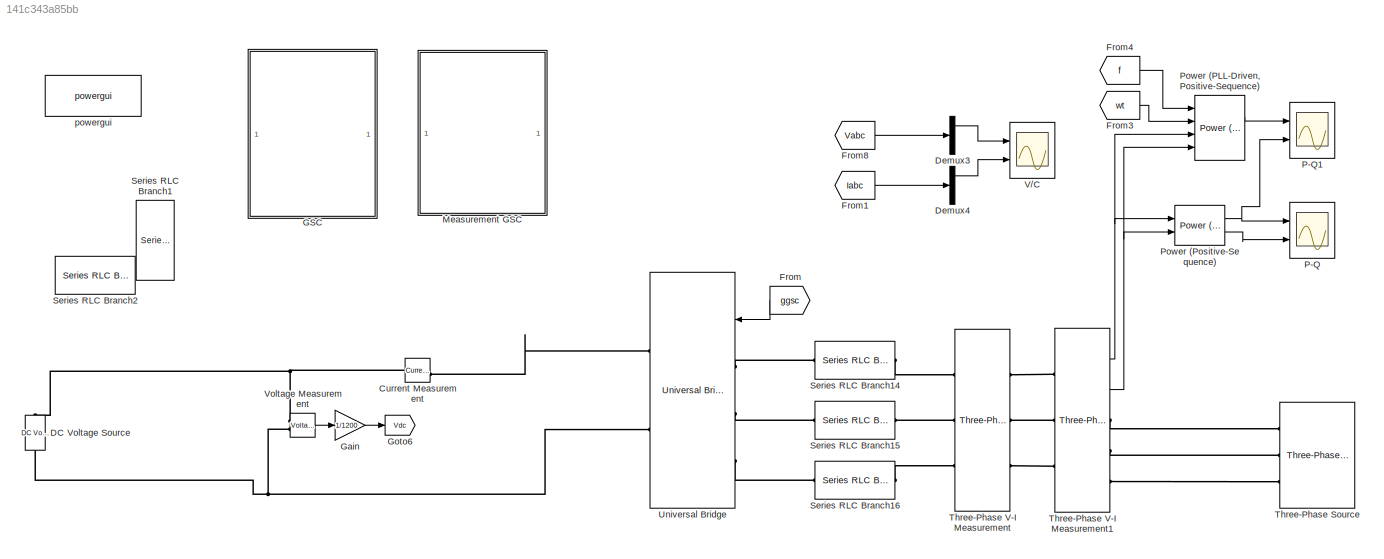
MODEL slx_141c343a85bb
KIND model
CONFIG AbsTol = auto
CONFIG FixedStep = auto
CONFIG MaxStep = auto
CONFIG MinStep = auto
CONFIG RelTol = 1e-3
CONFIG SampleTimeConstraint = Unconstrained
CONFIG Solver = VariableStepAuto
CONFIG SolverMode = Auto
CONFIG SolverName = VariableStepAuto
CONFIG StartTime = 0.0
CONFIG StopTime = 10.0
BLOCK [Reference] Current Measurement  REF=powerlib/Measurements/Current Measurement
  Ports = [0, 1, 0, 0, 0, 1, 1]
  SourceBlock = powerlib/Measurements/Current Measurement
  SourceType = Current Measurement
  UserDataPersistent = on
BLOCK [Reference] DC Voltage Source  REF=powerlib/Electrical
Sources/DC Voltage Source
  Ports = [0, 0, 0, 0, 0, 1, 1]
  SourceBlock = powerlib/Electrical\nSources/DC Voltage Source
  SourceType = DC Voltage Source
BLOCK [Demux] Demux3
  DisplayOption = bar
  Outputs = 3
  Ports = [1, 3]
BLOCK [Demux] Demux4
  DisplayOption = bar
  Outputs = 3
  Ports = [1, 3]
BLOCK [From] From
  GotoTag = ggsc
  TagVisibility = global
BLOCK [From] From1
  GotoTag = Iabc
  TagVisibility = global
BLOCK [From] From3
  GotoTag = wt
  TagVisibility = global
BLOCK [From] From4
  GotoTag = f
  TagVisibility = global
BLOCK [From] From8
  GotoTag = Vabc
  TagVisibility = global
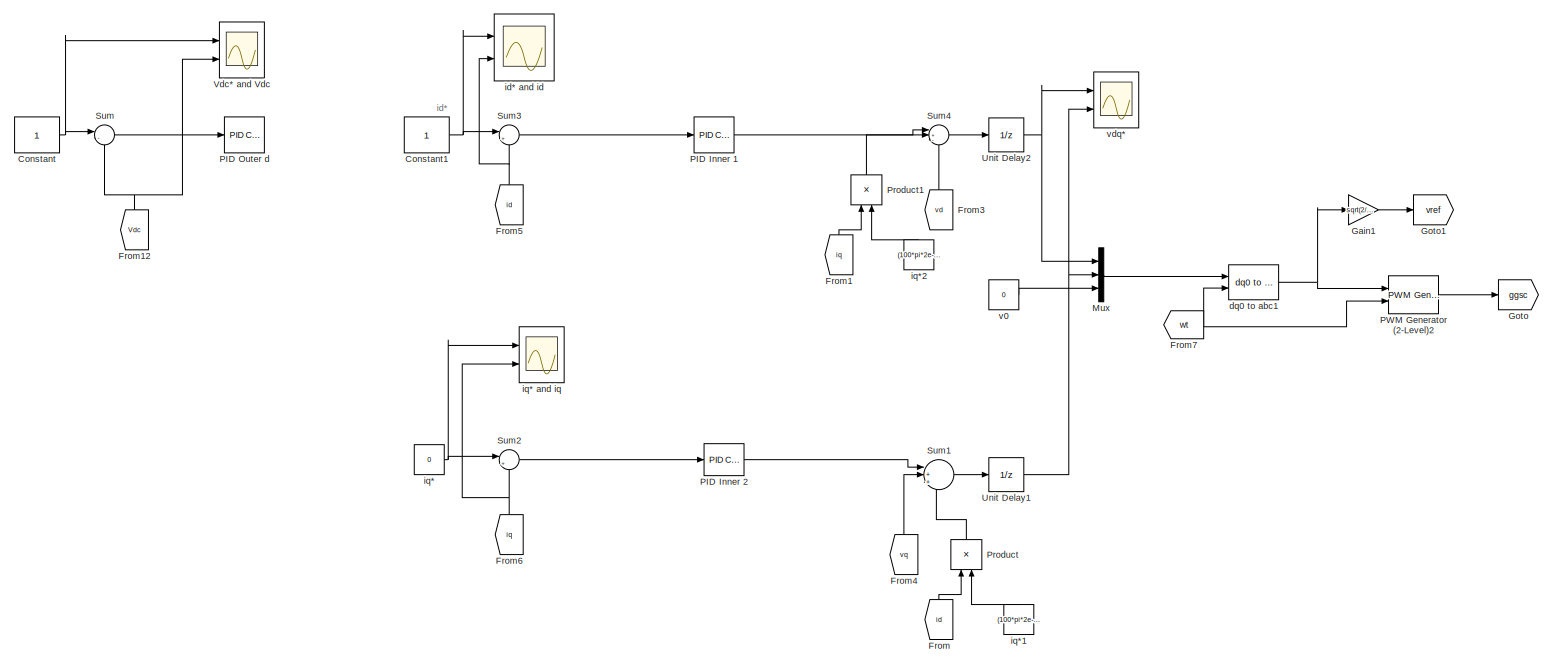
[diagram: GSC - part 1/1, most of the canvas]
BLOCK [SubSystem] GSC
  Ports = []
  RequestExecContextInheritance = off
  Variant = off
BLOCK [Constant] GSC/Constant
  Commented = on
BLOCK [Constant] GSC/Constant1
BLOCK [From] GSC/From
  GotoTag = id
  TagVisibility = global
BLOCK [From] GSC/From1
  GotoTag = iq
  TagVisibility = global
BLOCK [From] GSC/From12
  Commented = on
  GotoTag = Vdc
  TagVisibility = global
BLOCK [From] GSC/From3
  GotoTag = vd
  TagVisibility = global
BLOCK [From] GSC/From4
  GotoTag = vq
  TagVisibility = global
BLOCK [From] GSC/From5
  GotoTag = id
  TagVisibility = global
BLOCK [From] GSC/From6
  GotoTag = iq
  TagVisibility = global
BLOCK [From] GSC/From7
  GotoTag = wt
  TagVisibility = global
BLOCK [Gain] GSC/Gain1
  Gain = sqrt(2/3)*690
  OutDataTypeStr = Inherit: Inherit via internal rule
  ParamDataTypeStr = Inherit: Inherit via internal rule
  SaturateOnIntegerOverflow = off
BLOCK [Goto] GSC/Goto
  GotoTag = ggsc
  TagVisibility = global
BLOCK [Goto] GSC/Goto1
  GotoTag = vref
  TagVisibility = global
BLOCK [Mux] GSC/Mux
  DisplayOption = bar
  Inputs = 3
  Ports = [3, 1]
BLOCK [Reference] GSC/PID Inner 1  REF=simulink/Continuous/PID Controller
  Ports = [1, 1]
  SourceBlock = simulink/Continuous/PID Controller
  SourceType = PID 1dof
BLOCK [Reference] GSC/PID Inner 2  REF=simulink/Continuous/PID Controller
  Ports = [1, 1]
  SourceBlock = simulink/Continuous/PID Controller
  SourceType = PID 1dof
BLOCK [Reference] GSC/PID Outer d  REF=simulink/Continuous/PID Controller
  Commented = on
  Ports = [1, 1]
  SourceBlock = simulink/Continuous/PID Controller
  SourceType = PID 1dof
BLOCK [Reference] GSC/PWM Generator (2-Level)2  REF=powerlib_meascontrol/Pulse & Signal
Generators/PWM Generator
(2-Level)
  Ports = [2, 1]
  SourceBlock = powerlib_meascontrol/Pulse & Signal\nGenerators/PWM Generator\n(2-Level)
  SourceType = PWM Generator (2-Level)
BLOCK [Product] GSC/Product
  InputSameDT = off
  OutDataTypeStr = Inherit: Inherit via internal rule
  Ports = [2, 1]
  RndMeth = Floor
  SaturateOnIntegerOverflow = off
BLOCK [Product] GSC/Product1
  InputSameDT = off
  OutDataTypeStr = Inherit: Inherit via internal rule
  Ports = [2, 1]
  RndMeth = Floor
  SaturateOnIntegerOverflow = off
BLOCK [Sum] GSC/Sum
  Commented = on
  IconShape = round
  InputSameDT = off
  Inputs = |-+
  OutDataTypeStr = Inherit: Inherit via internal rule
  Ports = [2, 1]
  SaturateOnIntegerOverflow = off
BLOCK [Sum] GSC/Sum1
  IconShape = round
  InputSameDT = off
  Inputs = |+++
  OutDataTypeStr = Inherit: Inherit via internal rule
  Ports = [3, 1]
  SaturateOnIntegerOverflow = off
BLOCK [Sum] GSC/Sum2
  IconShape = round
  InputSameDT = off
  Inputs = |+-
  OutDataTypeStr = Inherit: Inherit via internal rule
  Ports = [2, 1]
  SaturateOnIntegerOverflow = off
BLOCK [Sum] GSC/Sum3
  IconShape = round
  InputSameDT = off
  Inputs = |+-
  OutDataTypeStr = Inherit: Inherit via internal rule
  Ports = [2, 1]
  SaturateOnIntegerOverflow = off
BLOCK [Sum] GSC/Sum4
  IconShape = round
  InputSameDT = off
  Inputs = |+-+
  OutDataTypeStr = Inherit: Inherit via internal rule
  Ports = [3, 1]
  SaturateOnIntegerOverflow = off
BLOCK [UnitDelay] GSC/Unit Delay1
  InputProcessing = Elements as channels (sample based)
  SampleTime = Ts
BLOCK [UnitDelay] GSC/Unit Delay2
  InputProcessing = Elements as channels (sample based)
  SampleTime = Ts
BLOCK [Scope] GSC/Vdc* and Vdc
  Commented = on
  NumInputPorts = 2
  Ports = [2]
  ScopeSpecificationString = Simulink.scopes.TimeScopeBlockCfg('CurrentConfiguration', extmgr.ConfigurationSet(extmgr.Configuration('Core','General UI',true),extmgr.Configuration('Core','Source UI',true),extmgr.Configuration('Sources','WiredSimulink',true,'DataLoggingSaveFormat','Array','DataLoggingDecimation','1','DataLoggingVariableName','ScopeData3'),extmgr.Configuration('Visuals','Time Domain',true,'SerializedDisplays',{s...<+1471ch>
BLOCK [Reference] GSC/dq0 to abc1  REF=powerlib_meascontrol/Transformations/dq0 to abc
  Ports = [2, 1]
  SourceBlock = powerlib_meascontrol/Transformations/dq0 to abc
  SourceType = dq0 to abc Transformation
BLOCK [Scope] GSC/id* and id 
  NumInputPorts = 2
  Ports = [2]
  ScopeSpecificationString = Simulink.scopes.TimeScopeBlockCfg('CurrentConfiguration', extmgr.ConfigurationSet(extmgr.Configuration('Core','General UI',true),extmgr.Configuration('Core','Source UI',true),extmgr.Configuration('Sources','WiredSimulink',true,'DataLoggingSaveFormat','Array','DataLoggingDecimation','1','DataLoggingVariableName','ScopeData3'),extmgr.Configuration('Visuals','Time Domain',true,'SerializedDisplays',{s...<+1840ch>
BLOCK [Constant] GSC/iq*
  Value = 0
BLOCK [Scope] GSC/iq* and iq 
  NumInputPorts = 2
  Ports = [2]
  ScopeSpecificationString = Simulink.scopes.TimeScopeBlockCfg('CurrentConfiguration', extmgr.ConfigurationSet(extmgr.Configuration('Core','General UI',true),extmgr.Configuration('Core','Source UI',true),extmgr.Configuration('Sources','WiredSimulink',true,'DataLoggingSaveFormat','Array','DataLoggingDecimation','1','DataLoggingVariableName','ScopeData4'),extmgr.Configuration('Visuals','Time Domain',true,'SerializedDisplays',{s...<+1505ch>
BLOCK [Constant] GSC/iq*1
  Value = (100*pi*2e-4)*(2.75e6/(690*690))
BLOCK [Constant] GSC/iq*2
  Value = (100*pi*2e-4)*(2.75e6/(690*690))
BLOCK [Constant] GSC/v0
  Value = 0
BLOCK [Scope] GSC/vdq* 
  NumInputPorts = 2
  Ports = [2]
  ScopeSpecificationString = Simulink.scopes.TimeScopeBlockCfg('CurrentConfiguration', extmgr.ConfigurationSet(extmgr.Configuration('Core','General UI',true),extmgr.Configuration('Core','Source UI',true),extmgr.Configuration('Sources','WiredSimulink',true,'DataLoggingSaveFormat','Array','DataLoggingDecimation','1','DataLoggingVariableName','ScopeData5'),extmgr.Configuration('Visuals','Time Domain',true,'SerializedDisplays',{s...<+1516ch>
BLOCK [Gain] Gain
  Gain = 1/1200
  OutDataTypeStr = Inherit: Inherit via internal rule
  ParamDataTypeStr = Inherit: Inherit via internal rule
  SaturateOnIntegerOverflow = off
BLOCK [Goto] Goto6
  GotoTag = Vdc
  TagVisibility = global
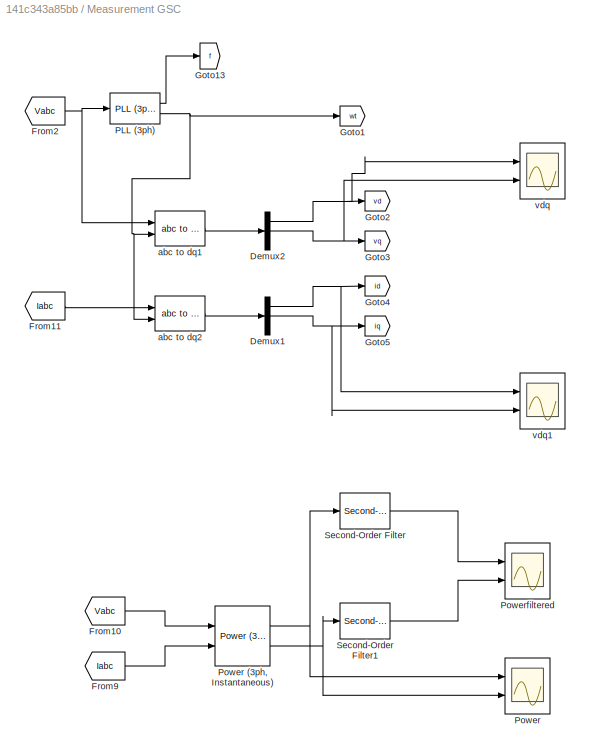
BLOCK [SubSystem] Measurement GSC
  Ports = []
  RequestExecContextInheritance = off
  Variant = off
BLOCK [Demux] Measurement GSC/Demux1
  DisplayOption = bar
  Outputs = 3
  Ports = [1, 3]
BLOCK [Demux] Measurement GSC/Demux2
  DisplayOption = bar
  Outputs = 3
  Ports = [1, 3]
BLOCK [From] Measurement GSC/From10
  GotoTag = Vabc
  TagVisibility = global
BLOCK [From] Measurement GSC/From11
  GotoTag = Iabc
  TagVisibility = global
BLOCK [From] Measurement GSC/From2
  GotoTag = Vabc
  TagVisibility = global
BLOCK [From] Measurement GSC/From9
  GotoTag = Iabc
  TagVisibility = global
BLOCK [Goto] Measurement GSC/Goto1
  GotoTag = wt
  TagVisibility = global
BLOCK [Goto] Measurement GSC/Goto13
  GotoTag = f
  TagVisibility = global
BLOCK [Goto] Measurement GSC/Goto2
  GotoTag = vd
  TagVisibility = global
BLOCK [Goto] Measurement GSC/Goto3
  GotoTag = vq
  TagVisibility = global
BLOCK [Goto] Measurement GSC/Goto4
  GotoTag = id
  TagVisibility = global
BLOCK [Goto] Measurement GSC/Goto5
  GotoTag = iq
  TagVisibility = global
BLOCK [Reference] Measurement GSC/PLL (3ph)  REF=powerlib_meascontrol/PLL/PLL
(3ph)
  Ports = [1, 2]
  SourceBlock = powerlib_meascontrol/PLL/PLL\n(3ph)
  SourceType = PLL (3ph)
BLOCK [Scope] Measurement GSC/Power
  NumInputPorts = 2
  Ports = [2]
  ScopeSpecificationString = Simulink.scopes.TimeScopeBlockCfg('CurrentConfiguration', extmgr.ConfigurationSet(extmgr.Configuration('Core','General UI',true),extmgr.Configuration('Core','Source UI',true),extmgr.Configuration('Sources','WiredSimulink',true,'DataLoggingVariableName','ScopeData1'),extmgr.Configuration('Visuals','Time Domain',true,'SerializedDisplays',{struct('MinYLimReal','1.27459','MaxYLimReal','1.63658','YLabe...<+1487ch>
BLOCK [Reference] Measurement GSC/Power (3ph, Instantaneous)  REF=powerlib_meascontrol/Measurements/Power
(3ph, Instantaneous)
  Ports = [2, 2]
  SourceBlock = powerlib_meascontrol/Measurements/Power\n(3ph, Instantaneous)
  SourceType = Power (3ph, Instantaneous)
BLOCK [Scope] Measurement GSC/Powerfiltered 
  NumInputPorts = 2
  Ports = [2]
  ScopeSpecificationString = Simulink.scopes.TimeScopeBlockCfg('CurrentConfiguration', extmgr.ConfigurationSet(extmgr.Configuration('Core','General UI',true),extmgr.Configuration('Core','Source UI',true),extmgr.Configuration('Sources','WiredSimulink',true,'DataLoggingVariableName','ScopeData2','DataLoggingLimitDataPoints',true,'DataLoggingSaveFormat','Array','DataLoggingDecimation','1','DataLoggingDecimateData',true),extmgr.C...<+1597ch>
BLOCK [Reference] Measurement GSC/Second-Order Filter  REF=powerlib_meascontrol/Filters/Second-Order
Filter
  Ports = [1, 1]
  SourceBlock = powerlib_meascontrol/Filters/Second-Order\nFilter
  SourceType = Second-Order Filter
BLOCK [Reference] Measurement GSC/Second-Order Filter1  REF=powerlib_meascontrol/Filters/Second-Order
Filter
  Ports = [1, 1]
  SourceBlock = powerlib_meascontrol/Filters/Second-Order\nFilter
  SourceType = Second-Order Filter
BLOCK [Reference] Measurement GSC/abc to dq1  REF=powerlib_meascontrol/Transformations/abc to dq0
  Ports = [2, 1]
  SourceBlock = powerlib_meascontrol/Transformations/abc to dq0
  SourceType = abc to dq0 Transformation
BLOCK [Reference] Measurement GSC/abc to dq2  REF=powerlib_meascontrol/Transformations/abc to dq0
  Ports = [2, 1]
  SourceBlock = powerlib_meascontrol/Transformations/abc to dq0
  SourceType = abc to dq0 Transformation
BLOCK [Scope] Measurement GSC/vdq
  NumInputPorts = 2
  Ports = [2]
  ScopeSpecificationString = Simulink.scopes.TimeScopeBlockCfg('CurrentConfiguration', extmgr.ConfigurationSet(extmgr.Configuration('Core','General UI',true),extmgr.Configuration('Core','Source UI',true),extmgr.Configuration('Sources','WiredSimulink',true,'DataLoggingSaveFormat','Array','DataLoggingDecimation','1','DataLoggingVariableName','ScopeData1'),extmgr.Configuration('Visuals','Time Domain',true,'SerializedDisplays',{s...<+1508ch>
BLOCK [Scope] Measurement GSC/vdq1
  NumInputPorts = 2
  Ports = [2]
  ScopeSpecificationString = Simulink.scopes.TimeScopeBlockCfg('CurrentConfiguration', extmgr.ConfigurationSet(extmgr.Configuration('Core','General UI',true),extmgr.Configuration('Core','Source UI',true),extmgr.Configuration('Sources','WiredSimulink',true,'DataLoggingSaveFormat','Array','DataLoggingDecimation','1','DataLoggingVariableName','ScopeData2'),extmgr.Configuration('Visuals','Time Domain',true,'SerializedDisplays',{s...<+1509ch>
BLOCK [Scope] P-Q
  NumInputPorts = 2
  Ports = [2]
  ScopeSpecificationString = Simulink.scopes.TimeScopeBlockCfg('CurrentConfiguration', extmgr.ConfigurationSet(extmgr.Configuration('Core','General UI',true),extmgr.Configuration('Core','Source UI',true),extmgr.Configuration('Sources','WiredSimulink',true,'DataLoggingSaveFormat','Array','DataLoggingDecimation','1','DataLoggingVariableName','ScopeData1'),extmgr.Configuration('Visuals','Time Domain',true,'SerializedDisplays',{s...<+1594ch>
BLOCK [Scope] P-Q1
  NumInputPorts = 2
  Ports = [2]
  ScopeSpecificationString = Simulink.scopes.TimeScopeBlockCfg('CurrentConfiguration', extmgr.ConfigurationSet(extmgr.Configuration('Core','General UI',true),extmgr.Configuration('Core','Source UI',true),extmgr.Configuration('Sources','WiredSimulink',true,'DataLoggingSaveFormat','Array','DataLoggingDecimation','1','DataLoggingVariableName','ScopeData1'),extmgr.Configuration('Visuals','Time Domain',true,'SerializedDisplays',{s...<+1602ch>
BLOCK [Reference] Power (PLL-Driven, Positive-Sequence)  REF=powerlib_meascontrol/Measurements/Power
(PLL-Driven,
Positive-Sequence)
  Ports = [4, 2]
  SourceBlock = powerlib_meascontrol/Measurements/Power\n(PLL-Driven,\nPositive-Sequence)
  SourceType = Power (PLL-Driven, Positive-Sequence)
BLOCK [Reference] Power (Positive-Sequence)  REF=powerlib_meascontrol/Measurements/Power
(Positive-Sequence)
  Ports = [2, 2]
  SourceBlock = powerlib_meascontrol/Measurements/Power\n(Positive-Sequence)
  SourceType = Power (Positive-Sequence)
BLOCK [Reference] Series RLC Branch1  REF=powerlib/Elements/Series RLC Branch
  Ports = [0, 0, 0, 0, 0, 1, 1]
  SourceBlock = powerlib/Elements/Series RLC Branch
  SourceType = Series RLC Branch
BLOCK [Reference] Series RLC Branch14  REF=powerlib/Elements/Series RLC Branch
  Ports = [0, 0, 0, 0, 0, 1, 1]
  SourceBlock = powerlib/Elements/Series RLC Branch
  SourceType = Series RLC Branch
BLOCK [Reference] Series RLC Branch15  REF=powerlib/Elements/Series RLC Branch
  Ports = [0, 0, 0, 0, 0, 1, 1]
  SourceBlock = powerlib/Elements/Series RLC Branch
  SourceType = Series RLC Branch
BLOCK [Reference] Series RLC Branch16  REF=powerlib/Elements/Series RLC Branch
  Ports = [0, 0, 0, 0, 0, 1, 1]
  SourceBlock = powerlib/Elements/Series RLC Branch
  SourceType = Series RLC Branch
BLOCK [Reference] Series RLC Branch2  REF=powerlib/Elements/Series RLC Branch
  Ports = [0, 0, 0, 0, 0, 1, 1]
  SourceBlock = powerlib/Elements/Series RLC Branch
  SourceType = Series RLC Branch
BLOCK [Reference] Three-Phase Source  REF=powerlib/Electrical
Sources/Three-Phase Source
  Ports = [0, 0, 0, 0, 0, 0, 3]
  SourceBlock = powerlib/Electrical\nSources/Three-Phase Source
  SourceType = Three-Phase Source
BLOCK [Reference] Three-Phase V-I Measurement  REF=powerlib/Measurements/Three-Phase
V-I Measurement
  Ports = [0, 0, 0, 0, 0, 3, 3]
  SourceBlock = powerlib/Measurements/Three-Phase\nV-I Measurement
  SourceType = Three-Phase VI Measurement
BLOCK [Reference] Three-Phase V-I Measurement1  REF=powerlib/Measurements/Three-Phase
V-I Measurement
  Ports = [0, 2, 0, 0, 0, 3, 3]
  SourceBlock = powerlib/Measurements/Three-Phase\nV-I Measurement
  SourceType = Three-Phase VI Measurement
BLOCK [Reference] Universal Bridge  REF=powerlib/Power
Electronics/Universal Bridge
  Ports = [1, 0, 0, 0, 0, 3, 2]
  SourceBlock = powerlib/Power\nElectronics/Universal Bridge
  SourceType = Universal Bridge
BLOCK [Scope] V//C 
  NumInputPorts = 2
  Ports = [2]
  ScopeSpecificationString = Simulink.scopes.TimeScopeBlockCfg('CurrentConfiguration', extmgr.ConfigurationSet(extmgr.Configuration('Core','General UI',true),extmgr.Configuration('Core','Source UI',true),extmgr.Configuration('Sources','WiredSimulink',true,'DataLoggingSaveFormat','Array','DataLoggingDecimation','1'),extmgr.Configuration('Visuals','Time Domain',true,'SerializedDisplays',{struct('MinYLimReal','-1.77746','MaxYLim...<+1473ch>
BLOCK [Reference] Voltage Measurement  REF=powerlib/Measurements/Voltage Measurement
  Ports = [0, 1, 0, 0, 0, 2]
  SourceBlock = powerlib/Measurements/Voltage Measurement
  SourceType = Voltage Measurement
  UserDataPersistent = on
BLOCK [Reference] powergui  REF=powerlib/powergui
  Ports = []
  Priority = 2
  SourceBlock = powerlib/powergui
  SourceType = PSB option menu block
ANNOTATION GSC: id*
LINE Demux3:1 -> V//C :1
LINE Demux4:1 -> V//C :2
LINE From1:1 -> Demux4:1
LINE From3:1 -> Power (PLL-Driven, Positive-Sequence):2
LINE From4:1 -> Power (PLL-Driven, Positive-Sequence):1
LINE From8:1 -> Demux3:1
LINE From:1 -> Universal Bridge:1
NET GSC/Constant1:1 -> GSC/Sum3:1, GSC/id* and id :1
NET GSC/Constant:1 -> GSC/Sum:1, GSC/Vdc* and Vdc:1
NET GSC/From12:1 -> GSC/Sum:2, GSC/Vdc* and Vdc:2
LINE GSC/From1:1 -> GSC/Product1:1
LINE GSC/From3:1 -> GSC/Sum4:3
LINE GSC/From4:1 -> GSC/Sum1:2
NET GSC/From5:1 -> GSC/Sum3:2, GSC/id* and id :2
NET GSC/From6:1 -> GSC/Sum2:2, GSC/iq* and iq :2
NET GSC/From7:1 -> GSC/PWM Generator (2-Level)2:2, GSC/dq0 to abc1:2
LINE GSC/From:1 -> GSC/Product:1
LINE GSC/Gain1:1 -> GSC/Goto1:1
LINE GSC/Mux:1 -> GSC/dq0 to abc1:1
LINE GSC/PID Inner 1:1 -> GSC/Sum4:1
LINE GSC/PID Inner 2:1 -> GSC/Sum1:1
LINE GSC/PWM Generator (2-Level)2:1 -> GSC/Goto:1
LINE GSC/Product1:1 -> GSC/Sum4:2
LINE GSC/Product:1 -> GSC/Sum1:3
LINE GSC/Sum1:1 -> GSC/Unit Delay1:1
LINE GSC/Sum2:1 -> GSC/PID Inner 2:1
LINE GSC/Sum3:1 -> GSC/PID Inner 1:1
LINE GSC/Sum4:1 -> GSC/Unit Delay2:1
LINE GSC/Sum:1 -> GSC/PID Outer d:1
NET GSC/Unit Delay1:1 -> GSC/Mux:2, GSC/vdq* :2
NET GSC/Unit Delay2:1 -> GSC/Mux:1, GSC/vdq* :1
NET GSC/dq0 to abc1:1 -> GSC/Gain1:1, GSC/PWM Generator (2-Level)2:1
LINE GSC/iq*1:1 -> GSC/Product:2
LINE GSC/iq*2:1 -> GSC/Product1:2
NET GSC/iq*:1 -> GSC/Sum2:1, GSC/iq* and iq :1
LINE GSC/v0:1 -> GSC/Mux:3
LINE Gain:1 -> Goto6:1
NET Measurement GSC/Demux1:1 -> Measurement GSC/Goto4:1, Measurement GSC/vdq1:1
NET Measurement GSC/Demux1:2 -> Measurement GSC/Goto5:1, Measurement GSC/vdq1:2
NET Measurement GSC/Demux2:1 -> Measurement GSC/Goto2:1, Measurement GSC/vdq:1
NET Measurement GSC/Demux2:2 -> Measurement GSC/Goto3:1, Measurement GSC/vdq:2
LINE Measurement GSC/From10:1 -> Measurement GSC/Power (3ph, Instantaneous):1
LINE Measurement GSC/From11:1 -> Measurement GSC/abc to dq2:1
NET Measurement GSC/From2:1 -> Measurement GSC/PLL (3ph):1, Measurement GSC/abc to dq1:1
LINE Measurement GSC/From9:1 -> Measurement GSC/Power (3ph, Instantaneous):2
LINE Measurement GSC/PLL (3ph):1 -> Measurement GSC/Goto13:1
NET Measurement GSC/PLL (3ph):2 -> Measurement GSC/Goto1:1, Measurement GSC/abc to dq1:2, Measurement GSC/abc to dq2:2
NET Measurement GSC/Power (3ph, Instantaneous):1 -> Measurement GSC/Power:1, Measurement GSC/Second-Order Filter:1
NET Measurement GSC/Power (3ph, Instantaneous):2 -> Measurement GSC/Power:2, Measurement GSC/Second-Order Filter1:1
LINE Measurement GSC/Second-Order Filter1:1 -> Measurement GSC/Powerfiltered :2
LINE Measurement GSC/Second-Order Filter:1 -> Measurement GSC/Powerfiltered :1
LINE Measurement GSC/abc to dq1:1 -> Measurement GSC/Demux2:1
LINE Measurement GSC/abc to dq2:1 -> Measurement GSC/Demux1:1
LINE Power (PLL-Driven, Positive-Sequence):1 -> P-Q1:1
NET Power (Positive-Sequence):1 -> P-Q1:2, P-Q:1
LINE Power (Positive-Sequence):2 -> P-Q:2
NET Three-Phase V-I Measurement1:1 -> Power (PLL-Driven, Positive-Sequence):3, Power (Positive-Sequence):1
NET Three-Phase V-I Measurement1:2 -> Power (PLL-Driven, Positive-Sequence):4, Power (Positive-Sequence):2
LINE Voltage Measurement:1 -> Gain:1
PNET net1: Current Measurement:LConn1 -- DC Voltage Source:RConn1 -- Voltage Measurement:LConn1
PLINE Current Measurement:RConn1 -- Universal Bridge:RConn1
PNET net2: DC Voltage Source:LConn1 -- Universal Bridge:RConn2 -- Voltage Measurement:LConn2
PLINE Series RLC Branch14:LConn1 -- Universal Bridge:LConn1
PLINE Series RLC Branch14:RConn1 -- Three-Phase V-I Measurement:LConn1
PLINE Series RLC Branch15:LConn1 -- Universal Bridge:LConn2
PLINE Series RLC Branch15:RConn1 -- Three-Phase V-I Measurement:LConn2
PLINE Series RLC Branch16:LConn1 -- Universal Bridge:LConn3
PLINE Series RLC Branch16:RConn1 -- Three-Phase V-I Measurement:LConn3
PLINE Three-Phase Source:RConn1 -- Three-Phase V-I Measurement1:RConn1
PLINE Three-Phase Source:RConn2 -- Three-Phase V-I Measurement1:RConn2
PLINE Three-Phase Source:RConn3 -- Three-Phase V-I Measurement1:RConn3
PLINE Three-Phase V-I Measurement1:LConn1 -- Three-Phase V-I Measurement:RConn1
PLINE Three-Phase V-I Measurement1:LConn2 -- Three-Phase V-I Measurement:RConn2
PLINE Three-Phase V-I Measurement1:LConn3 -- Three-Phase V-I Measurement:RConn3
note: NET lines group one-source signal fan-out (src -> all destinations, sorted); 1:1 wires keep LINE; PNET lines group multi-terminal physical nets as a canonical sorted terminal list (undirected conserving connections); 2-terminal nets keep the pairwise PLINE form
